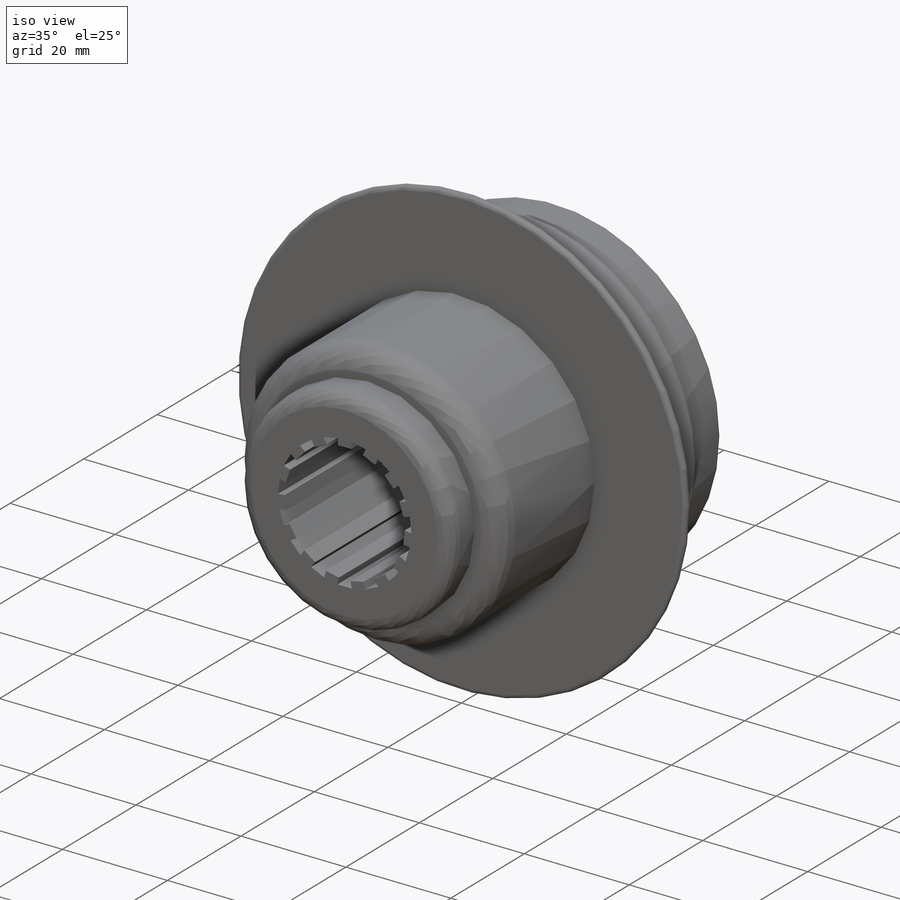
[diagram: iso view]
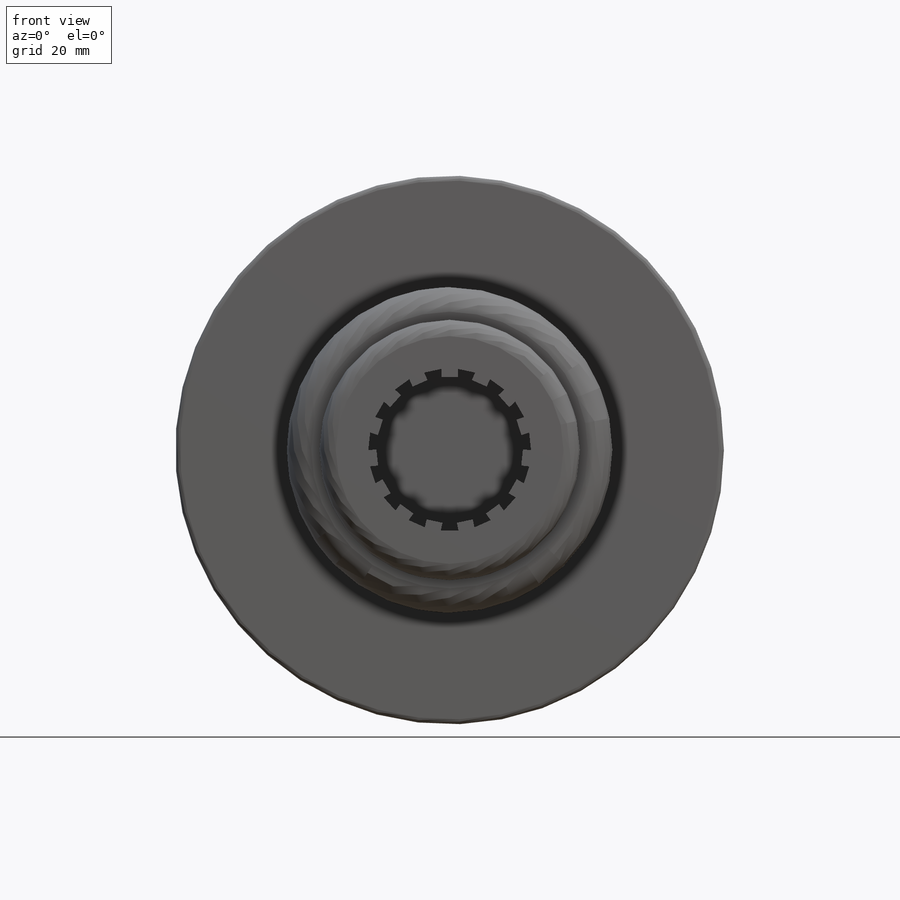
[diagram: front view]
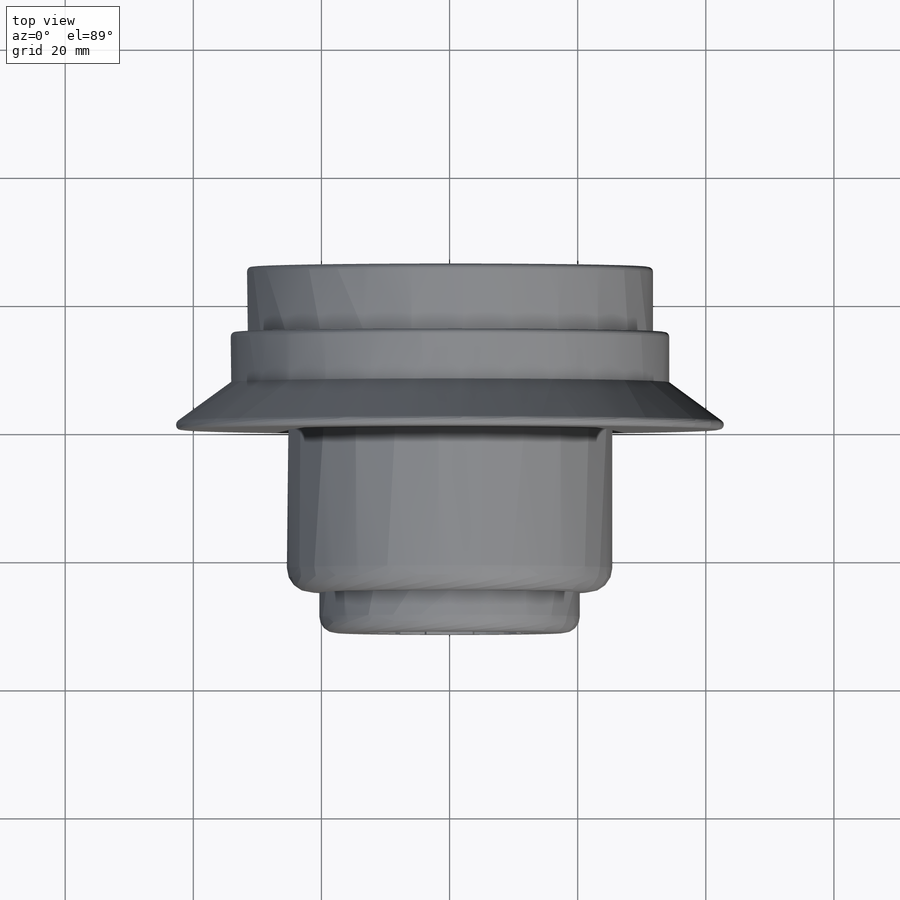
[diagram: top view]
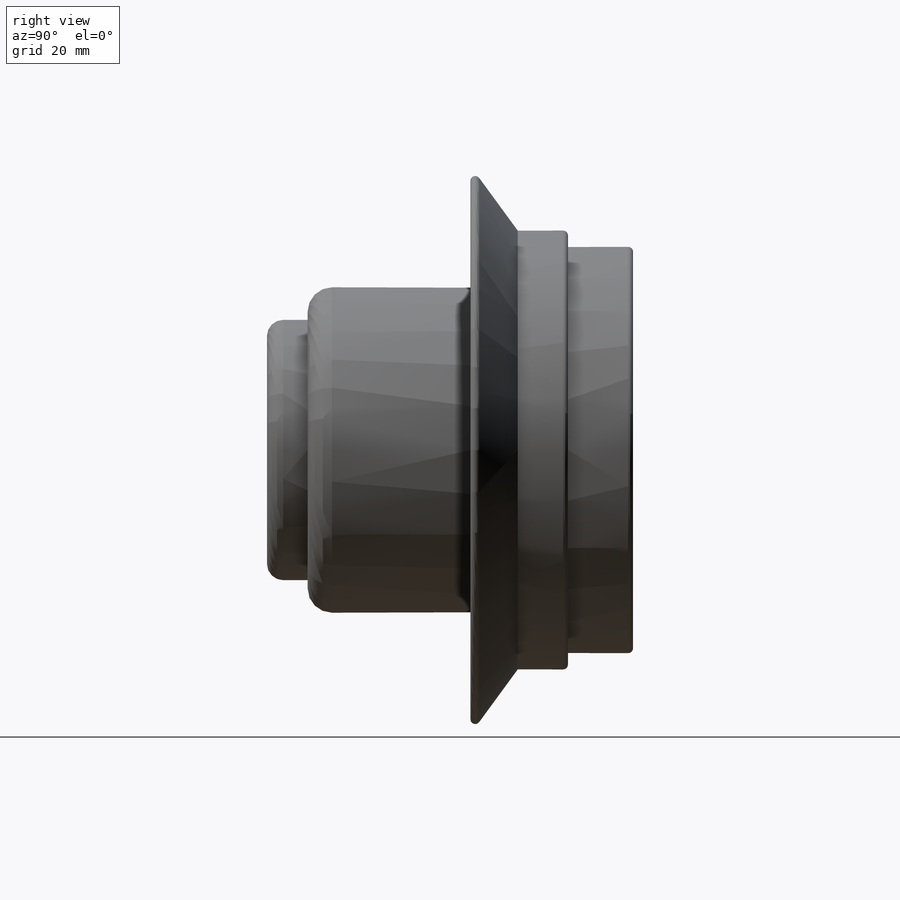
[diagram: right view]
SOLIDWORKS PART (.sldprt)
format: sldprt  version: not decoded by parser v0  size: 380,928 bytes
history: native  units: mm
features: sketch x3, cut_extrude x2, material x1, revolve x1 (+11 scaffold rows collapsed)
feature tree (18):
  scaffold x11  (default folders/planes/origin — collapsed)
  material  "6061 Alloy"
  sketch  "Sketch1"  dims[D11=0.762mm D12=2.54mm D13=3.81mm D1=25.4mm D2=31.75mm D3=34.29mm D4=10.16mm D5=~7.834125mm D6=~44.38785mm D7=25.4mm D8=20.32mm D9=31.75mm D10=25.4mm]
  revolve  "Revolve1"  Angle=360deg
  sketch  "Sketch2"  dims[D1=38.1mm]
  cut_extrude  "Cut-Extrude1"  Depth=10.16mm
  sketch  "Sketch3"  dims[D1=25.4mm D2=1.27mm D3=1.27mm D4=15.0]
  cut_extrude  "Cut-Extrude4"  Depth=35.56mm
decode coverage: 6 of 6 modeling features carry decoded parameters
note: ~ marks probable driven/reference dimensions
note: suppression state not decoded; provenance and decode notes live in map.json
